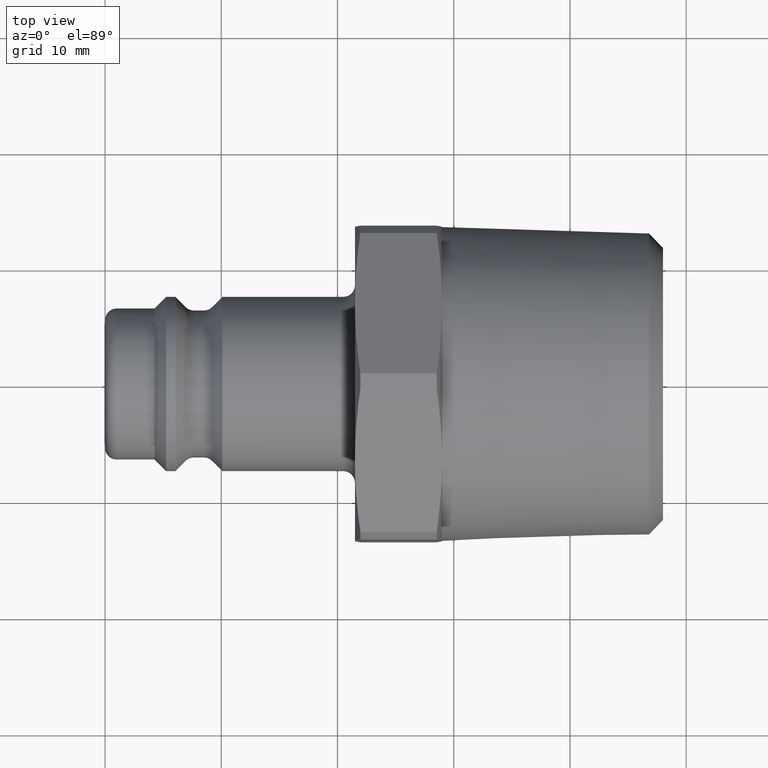
[diagram: clean part render]
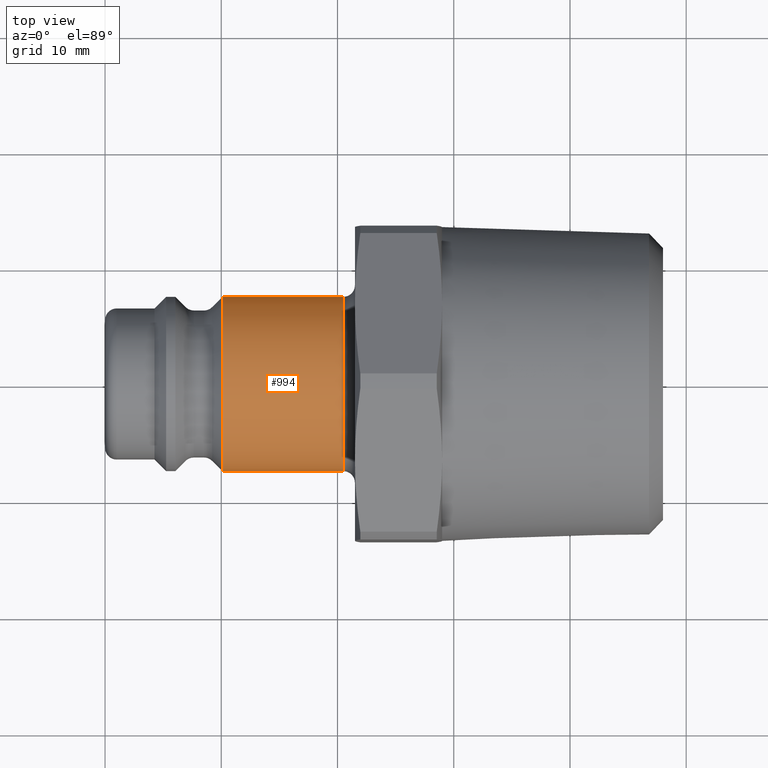
[diagram: same view with one face highlighted and labeled with its STEP entity id]
A machine part, top view. The second image highlights one B-rep face of the part: STEP entity #994.
In plain terms, the highlighted cylindrical surface (bore or boss wall) has radius 7.5 mm, axis along (1, 0, 0).
Its self-contained STEP definition (entity closure, byte-faithful):
#952=CARTESIAN_POINT('',(20.500000000000000,7.500000000000000,0.0));
#953=VERTEX_POINT('',#952);
#954=CARTESIAN_POINT('',(20.500000000000000,0.0,0.0));
#955=DIRECTION('',(1.0,0.0,0.0));
#956=DIRECTION('',(0.0,-1.0,0.0));
#957=AXIS2_PLACEMENT_3D('',#954,#955,#956);
#958=CIRCLE('',#957,7.500000000000000);
#959=EDGE_CURVE('',#953,#953,#958,.T.);
#975=CARTESIAN_POINT('',(15.800000000000001,0.0,0.0));
#976=DIRECTION('',(1.0,0.0,0.0));
#977=DIRECTION('',(0.0,1.0,0.0));
#978=AXIS2_PLACEMENT_3D('',#975,#976,#977);
#979=CYLINDRICAL_SURFACE('',#978,7.500000000000000);
#980=CARTESIAN_POINT('',(10.100000000000000,7.500000000000000,0.0));
#981=VERTEX_POINT('',#980);
#982=CARTESIAN_POINT('',(10.100000000000000,0.0,0.0));
#983=DIRECTION('',(1.0,0.0,0.0));
#984=DIRECTION('',(0.0,1.0,0.0));
#985=AXIS2_PLACEMENT_3D('',#982,#983,#984);
#986=CIRCLE('',#985,7.500000000000000);
#987=EDGE_CURVE('',#981,#981,#986,.T.);
#988=ORIENTED_EDGE('',*,*,#987,.T.);
#989=EDGE_LOOP('',(#988));
#990=FACE_OUTER_BOUND('',#989,.T.);
#991=ORIENTED_EDGE('',*,*,#959,.F.);
#992=EDGE_LOOP('',(#991));
#993=FACE_BOUND('',#992,.T.);
#994=ADVANCED_FACE('',(#990,#993),#979,.T.);